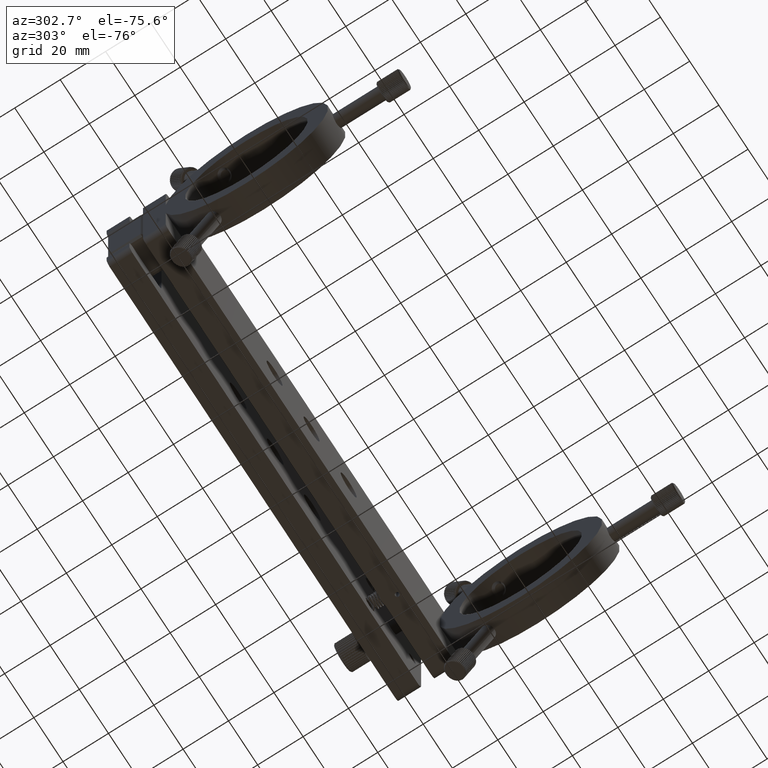
[diagram: clean part render]
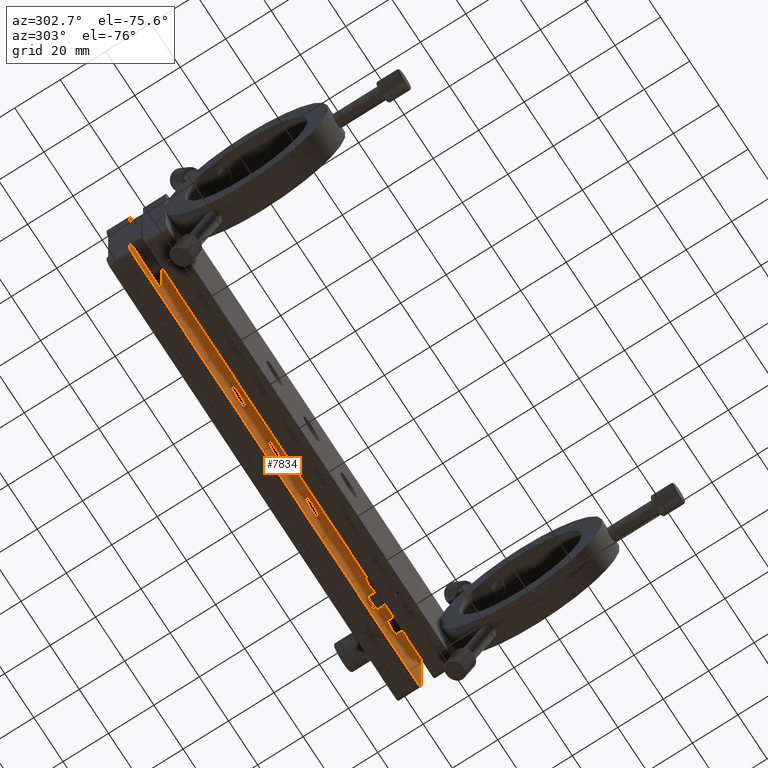
[diagram: same view with one face highlighted and labeled with its STEP entity id]
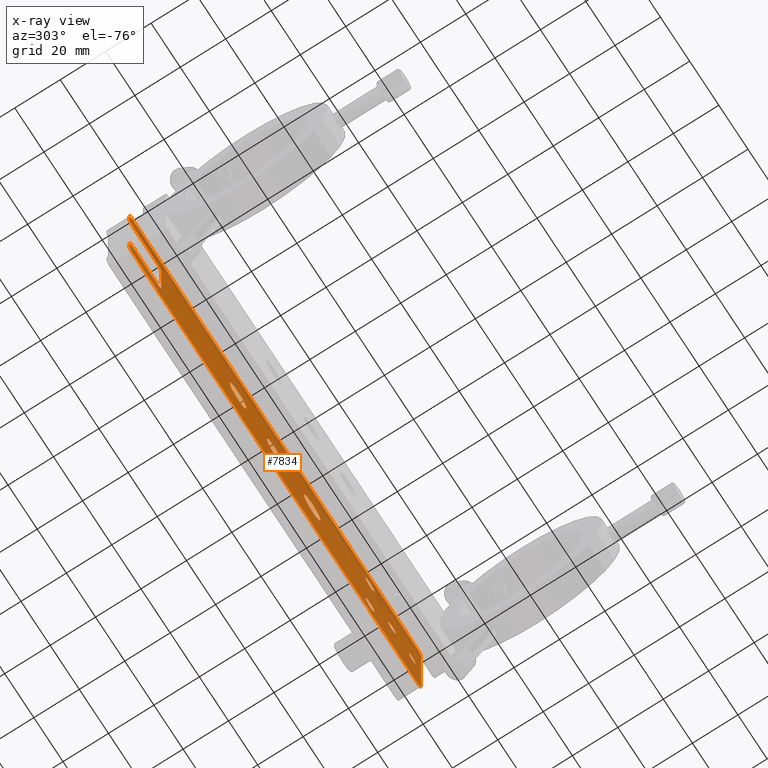
[diagram: x-ray of the same camera — body ghosted, the highlighted face saturated]
A machine part, auxiliary view. The second image highlights one B-rep face of the part: STEP entity #7834.
The next image is the same camera in x-ray: the body ghosted, the highlighted face saturated — about 16% of this face is hidden behind the body in this view.
In plain terms, the highlighted planar face has unit normal (-0, -1, 0).
Its self-contained STEP definition (entity closure, byte-faithful):
#23 = CARTESIAN_POINT ( 'NONE',  ( -100.6330608537692100, -1.412957917045111200, -24.99999999999988600 ) ) ;
#157 = ORIENTED_EDGE ( 'NONE', *, *, #3269, .F. ) ;
#218 = DIRECTION ( 'NONE',  ( -2.209601736609701800E-017, -1.000000000000000000, 9.593664196835668400E-017 ) ) ;
#554 = EDGE_CURVE ( 'NONE', #32211, #28431, #33998, .T. ) ;
#588 = FACE_BOUND ( 'NONE', #8189, .T. ) ;
#626 = ORIENTED_EDGE ( 'NONE', *, *, #26032, .T. ) ;
#871 = VERTEX_POINT ( 'NONE', #19591 ) ;
#1132 = DIRECTION ( 'NONE',  ( 0.0000000000000000000, -7.228014483236698300E-017, -1.000000000000000000 ) ) ;
#1234 = DIRECTION ( 'NONE',  ( 0.0000000000000000000, -7.228014483236694600E-017, -1.000000000000000000 ) ) ;
#1512 = CIRCLE ( 'NONE', #39091, 2.999999999999999100 ) ;
#1578 = VERTEX_POINT ( 'NONE', #15476 ) ;
#1642 = EDGE_CURVE ( 'NONE', #1578, #38785, #1512, .T. ) ;
#1869 = CIRCLE ( 'NONE', #23849, 2.999999999999999100 ) ;
#2139 = ORIENTED_EDGE ( 'NONE', *, *, #45605, .F. ) ;
#2267 = EDGE_LOOP ( 'NONE', ( #22863, #24629 ) ) ;
#2333 = DIRECTION ( 'NONE',  ( 0.0000000000000000000, -1.130482230880711100E-016, -1.000000000000000000 ) ) ;
#2859 = ORIENTED_EDGE ( 'NONE', *, *, #33308, .F. ) ;
#2924 = FACE_BOUND ( 'NONE', #25978, .T. ) ;
#2989 = EDGE_CURVE ( 'NONE', #47160, #871, #15556, .T. ) ;
#3006 = ORIENTED_EDGE ( 'NONE', *, *, #47632, .F. ) ;
#3269 = EDGE_CURVE ( 'NONE', #6565, #33777, #19101, .T. ) ;
#3628 = DIRECTION ( 'NONE',  ( -1.000000000000000000, 2.209601736609698700E-017, 5.579729118605796500E-018 ) ) ;
#3635 = AXIS2_PLACEMENT_3D ( 'NONE', #6798, #17965, #33162 ) ;
#3651 = LINE ( 'NONE', #9124, #32545 ) ;
#3735 = LINE ( 'NONE', #7737, #46188 ) ;
#3799 = ORIENTED_EDGE ( 'NONE', *, *, #27850, .T. ) ;
#4032 = VECTOR ( 'NONE', #15112, 1000.000000000000000 ) ;
#4038 = ORIENTED_EDGE ( 'NONE', *, *, #18357, .T. ) ;
#4097 = FACE_OUTER_BOUND ( 'NONE', #20282, .T. ) ;
#4157 = DIRECTION ( 'NONE',  ( -2.209601736609701800E-017, -1.000000000000000000, 9.593664196835668400E-017 ) ) ;
#4244 = EDGE_CURVE ( 'NONE', #22088, #46570, #4894, .T. ) ;
#4291 = CARTESIAN_POINT ( 'NONE',  ( 96.36693914623062100, -1.412957917045111200, 22.00000000000001800 ) ) ;
#4833 = CARTESIAN_POINT ( 'NONE',  ( 61.36693914623065600, -1.412957917045108500, 15.00000000000002700 ) ) ;
#4835 = CIRCLE ( 'NONE', #17672, 3.000000000000006200 ) ;
#4894 = CIRCLE ( 'NONE', #30663, 3.000000000000000900 ) ;
#5297 = AXIS2_PLACEMENT_3D ( 'NONE', #40481, #25040, #17717 ) ;
#5728 = ORIENTED_EDGE ( 'NONE', *, *, #26307, .F. ) ;
#5930 = CARTESIAN_POINT ( 'NONE',  ( -103.6330608537692100, -1.412957917045107600, -17.99999999999991100 ) ) ;
#5941 = DIRECTION ( 'NONE',  ( 1.000000000000000000, -2.209601736609698100E-017, 5.030698080332758400E-017 ) ) ;
#6439 = DIRECTION ( 'NONE',  ( 2.209601736609701800E-017, 1.000000000000000000, -9.593664196835668400E-017 ) ) ;
#6565 = VERTEX_POINT ( 'NONE', #27927 ) ;
#6738 = AXIS2_PLACEMENT_3D ( 'NONE', #8272, #15826, #27218 ) ;
#6798 = CARTESIAN_POINT ( 'NONE',  ( 61.36693914623065600, -1.412957917045108500, 15.00000000000002700 ) ) ;
#6914 = AXIS2_PLACEMENT_3D ( 'NONE', #24927, #39555, #31977 ) ;
#6957 = DIRECTION ( 'NONE',  ( -2.209601736609701800E-017, -1.000000000000000000, 9.593664196835668400E-017 ) ) ;
#7036 = ORIENTED_EDGE ( 'NONE', *, *, #1642, .T. ) ;
#7069 = VERTEX_POINT ( 'NONE', #12058 ) ;
#7109 = DIRECTION ( 'NONE',  ( 0.0000000000000000000, -8.673617379884079800E-017, -1.000000000000000000 ) ) ;
#7597 = CIRCLE ( 'NONE', #44677, 5.754369999999990900 ) ;
#7678 = ORIENTED_EDGE ( 'NONE', *, *, #28946, .F. ) ;
#7737 = CARTESIAN_POINT ( 'NONE',  ( 93.36693914623062100, -1.412957917045105900, 25.00000000000001100 ) ) ;
#7834 = ADVANCED_FACE ( 'NONE', ( #12913, #34203, #40061, #588, #24151, #4097, #42998, #2924 ), #36970, .T. ) ;
#7864 = ORIENTED_EDGE ( 'NONE', *, *, #35471, .F. ) ;
#8171 = EDGE_CURVE ( 'NONE', #43076, #23034, #7597, .T. ) ;
#8189 = EDGE_LOOP ( 'NONE', ( #42720, #25693 ) ) ;
#8272 = CARTESIAN_POINT ( 'NONE',  ( -84.63306085376922300, -1.412957917045106800, 12.00000000000005000 ) ) ;
#8590 = EDGE_CURVE ( 'NONE', #28431, #32211, #39963, .T. ) ;
#8638 = ORIENTED_EDGE ( 'NONE', *, *, #43807, .T. ) ;
#8761 = AXIS2_PLACEMENT_3D ( 'NONE', #31918, #47070, #31593 ) ;
#8909 = CARTESIAN_POINT ( 'NONE',  ( 90.36693914623062100, -1.412957917045110300, 3.209675328299507200E-014 ) ) ;
#8926 = EDGE_LOOP ( 'NONE', ( #7864, #2859 ) ) ;
#9124 = CARTESIAN_POINT ( 'NONE',  ( -81.63306085376920900, -1.412957917045107600, -11.99999999999992900 ) ) ;
#9450 = DIRECTION ( 'NONE',  ( -2.209601736609701800E-017, -1.000000000000000000, 9.593664196835668400E-017 ) ) ;
#9598 = CARTESIAN_POINT ( 'NONE',  ( -3.633060853769308100, -1.412957917045109200, -5.754369999999943800 ) ) ;
#9610 = EDGE_LOOP ( 'NONE', ( #3006, #42098 ) ) ;
#9673 = CARTESIAN_POINT ( 'NONE',  ( -103.6330608537691900, -1.412957917045104100, 22.00000000000002100 ) ) ;
#10223 = DIRECTION ( 'NONE',  ( 0.0000000000000000000, -7.228014483236694600E-017, -1.000000000000000000 ) ) ;
#10373 = DIRECTION ( 'NONE',  ( 0.0000000000000000000, -9.637352644315591500E-017, -1.000000000000000000 ) ) ;
#10863 = AXIS2_PLACEMENT_3D ( 'NONE', #20406, #34280, #15287 ) ;
#11049 = VERTEX_POINT ( 'NONE', #42458 ) ;
#11659 = CARTESIAN_POINT ( 'NONE',  ( 96.36693914623062100, -1.412957917045112800, -21.99999999999995400 ) ) ;
#12058 = CARTESIAN_POINT ( 'NONE',  ( -3.633060853769305400, -1.412957917045107900, 5.754370000000041500 ) ) ;
#12336 = VECTOR ( 'NONE', #45034, 1000.000000000000000 ) ;
#12685 = DIRECTION ( 'NONE',  ( -2.209601736609701800E-017, -1.000000000000000000, 9.593664196835668400E-017 ) ) ;
#12780 = VERTEX_POINT ( 'NONE', #9598 ) ;
#12913 = FACE_BOUND ( 'NONE', #9610, .T. ) ;
#12929 = CARTESIAN_POINT ( 'NONE',  ( 61.36693914623065600, -1.412957917045113600, -14.99999999999995400 ) ) ;
#13361 = EDGE_CURVE ( 'NONE', #11049, #30489, #13732, .T. ) ;
#13522 = CIRCLE ( 'NONE', #15157, 5.754369999999990900 ) ;
#13732 = CIRCLE ( 'NONE', #6914, 2.999999999999999100 ) ;
#14122 = VECTOR ( 'NONE', #21848, 1000.000000000000000 ) ;
#14166 = CIRCLE ( 'NONE', #43615, 2.250000000000000900 ) ;
#14415 = ORIENTED_EDGE ( 'NONE', *, *, #35791, .T. ) ;
#15112 = DIRECTION ( 'NONE',  ( 1.665334536937734800E-016, 9.593664196835669600E-017, 1.000000000000000000 ) ) ;
#15157 = AXIS2_PLACEMENT_3D ( 'NONE', #30972, #41493, #34143 ) ;
#15287 = DIRECTION ( 'NONE',  ( 0.0000000000000000000, -8.673617379884079800E-017, -1.000000000000000000 ) ) ;
#15429 = CARTESIAN_POINT ( 'NONE',  ( -29.03306085376928900, -1.412957917045108300, -5.754369999999939400 ) ) ;
#15476 = CARTESIAN_POINT ( 'NONE',  ( 93.36693914623062100, -1.412957917045112800, -24.99999999999996400 ) ) ;
#15556 = LINE ( 'NONE', #17416, #40343 ) ;
#15826 = DIRECTION ( 'NONE',  ( 2.209601736609701800E-017, 1.000000000000000000, -9.593664196835668400E-017 ) ) ;
#16065 = VERTEX_POINT ( 'NONE', #18180 ) ;
#16170 = CARTESIAN_POINT ( 'NONE',  ( 61.36693914623065600, -1.412957917045113900, -17.99999999999995700 ) ) ;
#16743 = VERTEX_POINT ( 'NONE', #4291 ) ;
#17029 = ORIENTED_EDGE ( 'NONE', *, *, #38560, .T. ) ;
#17084 = EDGE_LOOP ( 'NONE', ( #7678, #2139 ) ) ;
#17416 = CARTESIAN_POINT ( 'NONE',  ( -103.6330608537692200, -1.412957917045107600, -17.99999999999991100 ) ) ;
#17601 = ORIENTED_EDGE ( 'NONE', *, *, #13361, .F. ) ;
#17672 = AXIS2_PLACEMENT_3D ( 'NONE', #35183, #9450, #28230 ) ;
#17717 = DIRECTION ( 'NONE',  ( 0.0000000000000000000, -7.228014483236681000E-017, -1.000000000000000000 ) ) ;
#17720 = DIRECTION ( 'NONE',  ( 6.772360450213497500E-015, -9.593664196835684400E-017, -1.000000000000000000 ) ) ;
#17788 = CIRCLE ( 'NONE', #23709, 5.754369999999990900 ) ;
#17965 = DIRECTION ( 'NONE',  ( -2.209601736609701800E-017, -1.000000000000000000, 9.593664196835668400E-017 ) ) ;
#18089 = CARTESIAN_POINT ( 'NONE',  ( -3.633060853769307200, -1.412957917045108500, 4.775089793020978000E-014 ) ) ;
#18144 = CARTESIAN_POINT ( 'NONE',  ( 93.36693914623062100, -1.412957917045108500, 22.00000000000001100 ) ) ;
#18180 = CARTESIAN_POINT ( 'NONE',  ( -100.6330608537692100, -1.412957917045110300, -14.99999999999992400 ) ) ;
#18357 = EDGE_CURVE ( 'NONE', #38785, #16743, #21140, .T. ) ;
#18473 = CARTESIAN_POINT ( 'NONE',  ( 93.36693914623062100, -1.412957917045105900, 25.00000000000001100 ) ) ;
#18544 = VERTEX_POINT ( 'NONE', #34108 ) ;
#19101 = CIRCLE ( 'NONE', #19244, 3.000000000000000900 ) ;
#19244 = AXIS2_PLACEMENT_3D ( 'NONE', #4833, #24111, #1234 ) ;
#19591 = CARTESIAN_POINT ( 'NONE',  ( -103.6330608537691900, -1.412957917045105900, -21.99999999999988600 ) ) ;
#20212 = CIRCLE ( 'NONE', #31546, 5.754369999999990900 ) ;
#20282 = EDGE_LOOP ( 'NONE', ( #8638, #39223, #26292, #14415, #27119, #48062, #17029, #43459, #35689, #25915, #39510, #33838, #626, #3799, #7036, #4038 ) ) ;
#20406 = CARTESIAN_POINT ( 'NONE',  ( 76.36693914623062100, -1.412957917045111200, 5.551928382156476500E-014 ) ) ;
#20564 = CIRCLE ( 'NONE', #8761, 2.999999999999988900 ) ;
#21066 = EDGE_LOOP ( 'NONE', ( #17601, #5728 ) ) ;
#21140 = LINE ( 'NONE', #11659, #4032 ) ;
#21493 = VERTEX_POINT ( 'NONE', #45705 ) ;
#21642 = CARTESIAN_POINT ( 'NONE',  ( -29.03306085376928900, -1.412957917045107000, 5.754370000000046800 ) ) ;
#21848 = DIRECTION ( 'NONE',  ( -1.000000000000000000, 2.209601736609702400E-017, 3.833738881908745700E-016 ) ) ;
#21910 = DIRECTION ( 'NONE',  ( -2.209601736609701800E-017, -1.000000000000000000, 9.593664196835668400E-017 ) ) ;
#22088 = VERTEX_POINT ( 'NONE', #31034 ) ;
#22294 = DIRECTION ( 'NONE',  ( -1.665334536937734800E-016, -9.593664196835668400E-017, -1.000000000000000000 ) ) ;
#22402 = CARTESIAN_POINT ( 'NONE',  ( 61.36693914623065600, -1.412957917045108800, 12.00000000000002500 ) ) ;
#22420 = LINE ( 'NONE', #25652, #14122 ) ;
#22863 = ORIENTED_EDGE ( 'NONE', *, *, #47204, .F. ) ;
#22910 = DIRECTION ( 'NONE',  ( 0.0000000000000000000, -7.228014483236698300E-017, -1.000000000000000000 ) ) ;
#23034 = VERTEX_POINT ( 'NONE', #15429 ) ;
#23261 = DIRECTION ( 'NONE',  ( 0.0000000000000000000, -1.130482230880711100E-016, -1.000000000000000000 ) ) ;
#23555 = LINE ( 'NONE', #41218, #12336 ) ;
#23709 = AXIS2_PLACEMENT_3D ( 'NONE', #18089, #21910, #48273 ) ;
#23849 = AXIS2_PLACEMENT_3D ( 'NONE', #12929, #39135, #1132 ) ;
#24111 = DIRECTION ( 'NONE',  ( -2.209601736609701800E-017, -1.000000000000000000, 9.593664196835668400E-017 ) ) ;
#24138 = CARTESIAN_POINT ( 'NONE',  ( 21.76693914623067600, -1.412957917045109600, 5.754370000000038000 ) ) ;
#24151 = FACE_BOUND ( 'NONE', #21066, .T. ) ;
#24440 = EDGE_CURVE ( 'NONE', #41443, #38562, #3735, .T. ) ;
#24590 = DIRECTION ( 'NONE',  ( 0.0000000000000000000, -7.228014483236698300E-017, -1.000000000000000000 ) ) ;
#24629 = ORIENTED_EDGE ( 'NONE', *, *, #31817, .F. ) ;
#24745 = CARTESIAN_POINT ( 'NONE',  ( -84.63306085376922300, -1.412957917045105000, 15.00000000000005200 ) ) ;
#24923 = CARTESIAN_POINT ( 'NONE',  ( -84.63306085376922300, -1.412957917045107600, -11.99999999999992900 ) ) ;
#24927 = CARTESIAN_POINT ( 'NONE',  ( 61.36693914623065600, -1.412957917045113600, -14.99999999999995400 ) ) ;
#25040 = DIRECTION ( 'NONE',  ( -2.209601736609701800E-017, -1.000000000000000000, 9.593664196835668400E-017 ) ) ;
#25241 = DIRECTION ( 'NONE',  ( -2.209601736609701800E-017, -1.000000000000000000, 9.593664196835668400E-017 ) ) ;
#25613 = VERTEX_POINT ( 'NONE', #32003 ) ;
#25652 = CARTESIAN_POINT ( 'NONE',  ( -100.6330608537692100, -1.412957917045110300, -14.99999999999992400 ) ) ;
#25693 = ORIENTED_EDGE ( 'NONE', *, *, #554, .F. ) ;
#25708 = VERTEX_POINT ( 'NONE', #35642 ) ;
#25863 = DIRECTION ( 'NONE',  ( 0.0000000000000000000, -7.228014483236722900E-017, -1.000000000000000000 ) ) ;
#25915 = ORIENTED_EDGE ( 'NONE', *, *, #47829, .T. ) ;
#25978 = EDGE_LOOP ( 'NONE', ( #157, #29160 ) ) ;
#26032 = EDGE_CURVE ( 'NONE', #871, #32265, #31335, .T. ) ;
#26292 = ORIENTED_EDGE ( 'NONE', *, *, #28715, .T. ) ;
#26307 = EDGE_CURVE ( 'NONE', #30489, #11049, #1869, .T. ) ;
#26351 = DIRECTION ( 'NONE',  ( -2.209601736609701800E-017, -1.000000000000000000, 9.593664196835668400E-017 ) ) ;
#26452 = CIRCLE ( 'NONE', #29265, 5.754369999999990900 ) ;
#27008 = EDGE_CURVE ( 'NONE', #33777, #6565, #35413, .T. ) ;
#27119 = ORIENTED_EDGE ( 'NONE', *, *, #46357, .T. ) ;
#27218 = DIRECTION ( 'NONE',  ( 0.0000000000000000000, -7.228014483236694600E-017, -1.000000000000000000 ) ) ;
#27464 = CIRCLE ( 'NONE', #37824, 2.250000000000000900 ) ;
#27521 = CARTESIAN_POINT ( 'NONE',  ( -100.6330608537692100, -1.412957917045105000, 15.00000000000004300 ) ) ;
#27850 = EDGE_CURVE ( 'NONE', #32265, #1578, #23555, .T. ) ;
#27927 = CARTESIAN_POINT ( 'NONE',  ( 61.36693914623065600, -1.412957917045108300, 18.00000000000002800 ) ) ;
#27963 = CARTESIAN_POINT ( 'NONE',  ( -29.03306085376928900, -1.412957917045107600, 5.198084765403162200E-014 ) ) ;
#28180 = CARTESIAN_POINT ( 'NONE',  ( -29.03306085376928900, -1.412957917045107600, 5.198084765403162200E-014 ) ) ;
#28194 = CARTESIAN_POINT ( 'NONE',  ( 93.36693914623062100, -1.412957917045108500, 22.00000000000001100 ) ) ;
#28230 = DIRECTION ( 'NONE',  ( 0.0000000000000000000, -7.228014483236681000E-017, -1.000000000000000000 ) ) ;
#28424 = CIRCLE ( 'NONE', #32139, 2.999999999999999100 ) ;
#28431 = VERTEX_POINT ( 'NONE', #45302 ) ;
#28555 = AXIS2_PLACEMENT_3D ( 'NONE', #18144, #48322, #22294 ) ;
#28715 = EDGE_CURVE ( 'NONE', #38562, #31612, #20564, .T. ) ;
#28946 = EDGE_CURVE ( 'NONE', #12780, #7069, #26452, .T. ) ;
#29160 = ORIENTED_EDGE ( 'NONE', *, *, #27008, .F. ) ;
#29174 = EDGE_CURVE ( 'NONE', #16065, #47160, #35275, .T. ) ;
#29265 = AXIS2_PLACEMENT_3D ( 'NONE', #33234, #37336, #33408 ) ;
#30489 = VERTEX_POINT ( 'NONE', #16170 ) ;
#30648 = CIRCLE ( 'NONE', #32580, 5.754369999999990900 ) ;
#30663 = AXIS2_PLACEMENT_3D ( 'NONE', #24923, #6439, #10223 ) ;
#30972 = CARTESIAN_POINT ( 'NONE',  ( 21.76693914623067600, -1.412957917045110300, 4.352094820638791800E-014 ) ) ;
#31016 = CARTESIAN_POINT ( 'NONE',  ( -100.6330608537692100, -1.412957917045104100, 25.00000000000002100 ) ) ;
#31034 = CARTESIAN_POINT ( 'NONE',  ( -81.63306085376920900, -1.412957917045107600, -11.99999999999992900 ) ) ;
#31335 = CIRCLE ( 'NONE', #45929, 2.999999999999988900 ) ;
#31546 = AXIS2_PLACEMENT_3D ( 'NONE', #34019, #4157, #23261 ) ;
#31593 = DIRECTION ( 'NONE',  ( 0.0000000000000000000, -7.228014483236722900E-017, -1.000000000000000000 ) ) ;
#31612 = VERTEX_POINT ( 'NONE', #41704 ) ;
#31781 = LINE ( 'NONE', #9673, #45933 ) ;
#31811 = AXIS2_PLACEMENT_3D ( 'NONE', #44688, #6957, #7109 ) ;
#31817 = EDGE_CURVE ( 'NONE', #43965, #25613, #27464, .T. ) ;
#31918 = CARTESIAN_POINT ( 'NONE',  ( -100.6330608537692100, -1.412957917045106800, 22.00000000000002500 ) ) ;
#31977 = DIRECTION ( 'NONE',  ( 0.0000000000000000000, -7.228014483236698300E-017, -1.000000000000000000 ) ) ;
#32003 = CARTESIAN_POINT ( 'NONE',  ( 90.36693914623062100, -1.412957917045110100, 2.250000000000033800 ) ) ;
#32133 = CARTESIAN_POINT ( 'NONE',  ( 96.36693914623062100, -1.412957917045112800, -21.99999999999995400 ) ) ;
#32139 = AXIS2_PLACEMENT_3D ( 'NONE', #28194, #43357, #24590 ) ;
#32211 = VERTEX_POINT ( 'NONE', #34420 ) ;
#32265 = VERTEX_POINT ( 'NONE', #23 ) ;
#32545 = VECTOR ( 'NONE', #46841, 1000.000000000000000 ) ;
#32580 = AXIS2_PLACEMENT_3D ( 'NONE', #27963, #34908, #42952 ) ;
#32960 = CARTESIAN_POINT ( 'NONE',  ( 90.36693914623062100, -1.412957917045110300, 3.209675328299507200E-014 ) ) ;
#33162 = DIRECTION ( 'NONE',  ( 0.0000000000000000000, -7.228014483236694600E-017, -1.000000000000000000 ) ) ;
#33234 = CARTESIAN_POINT ( 'NONE',  ( -3.633060853769307200, -1.412957917045108500, 4.775089793020978000E-014 ) ) ;
#33308 = EDGE_CURVE ( 'NONE', #46459, #25708, #20212, .T. ) ;
#33408 = DIRECTION ( 'NONE',  ( -1.507309641174281200E-016, -1.130482230880711100E-016, -1.000000000000000000 ) ) ;
#33777 = VERTEX_POINT ( 'NONE', #22402 ) ;
#33838 = ORIENTED_EDGE ( 'NONE', *, *, #2989, .T. ) ;
#33998 = CIRCLE ( 'NONE', #31811, 2.499999999999987100 ) ;
#34019 = CARTESIAN_POINT ( 'NONE',  ( 21.76693914623067600, -1.412957917045110300, 4.352094820638791800E-014 ) ) ;
#34108 = CARTESIAN_POINT ( 'NONE',  ( -81.63306085376920900, -1.412957917045105900, 12.00000000000005000 ) ) ;
#34143 = DIRECTION ( 'NONE',  ( 0.0000000000000000000, -1.130482230880711100E-016, -1.000000000000000000 ) ) ;
#34203 = FACE_BOUND ( 'NONE', #17084, .T. ) ;
#34280 = DIRECTION ( 'NONE',  ( -2.209601736609701800E-017, -1.000000000000000000, 9.593664196835668400E-017 ) ) ;
#34420 = CARTESIAN_POINT ( 'NONE',  ( 76.36693914623062100, -1.412957917045111000, 2.500000000000044000 ) ) ;
#34826 = VECTOR ( 'NONE', #5941, 1000.000000000000000 ) ;
#34908 = DIRECTION ( 'NONE',  ( -2.209601736609701800E-017, -1.000000000000000000, 9.593664196835668400E-017 ) ) ;
#35183 = CARTESIAN_POINT ( 'NONE',  ( -100.6330608537692100, -1.412957917045105900, 18.00000000000004300 ) ) ;
#35275 = CIRCLE ( 'NONE', #5297, 3.000000000000006200 ) ;
#35413 = CIRCLE ( 'NONE', #3635, 3.000000000000000900 ) ;
#35471 = EDGE_CURVE ( 'NONE', #25708, #46459, #13522, .T. ) ;
#35642 = CARTESIAN_POINT ( 'NONE',  ( 21.76693914623067600, -1.412957917045111000, -5.754369999999948200 ) ) ;
#35689 = ORIENTED_EDGE ( 'NONE', *, *, #4244, .T. ) ;
#35791 = EDGE_CURVE ( 'NONE', #31612, #21493, #31781, .T. ) ;
#36049 = DIRECTION ( 'NONE',  ( -7.105427357601041300E-015, -9.593664196835657300E-017, -1.000000000000000000 ) ) ;
#36913 = VERTEX_POINT ( 'NONE', #27521 ) ;
#36970 = PLANE ( 'NONE',  #28555 ) ;
#37336 = DIRECTION ( 'NONE',  ( -2.209601736609701800E-017, -1.000000000000000000, 9.593664196835668400E-017 ) ) ;
#37824 = AXIS2_PLACEMENT_3D ( 'NONE', #8909, #12685, #43005 ) ;
#38151 = CARTESIAN_POINT ( 'NONE',  ( -84.63306085376922300, -1.412957917045105000, 15.00000000000005200 ) ) ;
#38560 = EDGE_CURVE ( 'NONE', #41191, #18544, #43428, .T. ) ;
#38562 = VERTEX_POINT ( 'NONE', #31016 ) ;
#38785 = VERTEX_POINT ( 'NONE', #32133 ) ;
#39091 = AXIS2_PLACEMENT_3D ( 'NONE', #41183, #218, #22910 ) ;
#39135 = DIRECTION ( 'NONE',  ( -2.209601736609701800E-017, -1.000000000000000000, 9.593664196835668400E-017 ) ) ;
#39223 = ORIENTED_EDGE ( 'NONE', *, *, #24440, .T. ) ;
#39510 = ORIENTED_EDGE ( 'NONE', *, *, #29174, .T. ) ;
#39555 = DIRECTION ( 'NONE',  ( -2.209601736609701800E-017, -1.000000000000000000, 9.593664196835668400E-017 ) ) ;
#39963 = CIRCLE ( 'NONE', #10863, 2.499999999999987100 ) ;
#40043 = CARTESIAN_POINT ( 'NONE',  ( 90.36693914623062100, -1.412957917045110500, -2.249999999999969800 ) ) ;
#40061 = FACE_BOUND ( 'NONE', #8926, .T. ) ;
#40343 = VECTOR ( 'NONE', #17720, 1000.000000000000000 ) ;
#40481 = CARTESIAN_POINT ( 'NONE',  ( -100.6330608537692100, -1.412957917045109400, -17.99999999999991100 ) ) ;
#41183 = CARTESIAN_POINT ( 'NONE',  ( 93.36693914623062100, -1.412957917045110300, -21.99999999999996100 ) ) ;
#41191 = VERTEX_POINT ( 'NONE', #38151 ) ;
#41218 = CARTESIAN_POINT ( 'NONE',  ( -100.6330608537692100, -1.412957917045111200, -24.99999999999989000 ) ) ;
#41443 = VERTEX_POINT ( 'NONE', #18473 ) ;
#41454 = CARTESIAN_POINT ( 'NONE',  ( -100.6330608537692100, -1.412957917045108500, -21.99999999999989300 ) ) ;
#41493 = DIRECTION ( 'NONE',  ( -2.209601736609701800E-017, -1.000000000000000000, 9.593664196835668400E-017 ) ) ;
#41704 = CARTESIAN_POINT ( 'NONE',  ( -103.6330608537691900, -1.412957917045104100, 22.00000000000002100 ) ) ;
#42098 = ORIENTED_EDGE ( 'NONE', *, *, #8171, .F. ) ;
#42458 = CARTESIAN_POINT ( 'NONE',  ( 61.36693914623065600, -1.412957917045113400, -11.99999999999995200 ) ) ;
#42720 = ORIENTED_EDGE ( 'NONE', *, *, #8590, .F. ) ;
#42952 = DIRECTION ( 'NONE',  ( 0.0000000000000000000, -1.130482230880711100E-016, -1.000000000000000000 ) ) ;
#42998 = FACE_BOUND ( 'NONE', #2267, .T. ) ;
#43005 = DIRECTION ( 'NONE',  ( 0.0000000000000000000, -9.637352644315591500E-017, -1.000000000000000000 ) ) ;
#43076 = VERTEX_POINT ( 'NONE', #21642 ) ;
#43357 = DIRECTION ( 'NONE',  ( -2.209601736609701800E-017, -1.000000000000000000, 9.593664196835668400E-017 ) ) ;
#43428 = CIRCLE ( 'NONE', #6738, 3.000000000000000900 ) ;
#43459 = ORIENTED_EDGE ( 'NONE', *, *, #46463, .T. ) ;
#43615 = AXIS2_PLACEMENT_3D ( 'NONE', #32960, #25241, #10373 ) ;
#43807 = EDGE_CURVE ( 'NONE', #16743, #41443, #28424, .T. ) ;
#43965 = VERTEX_POINT ( 'NONE', #40043 ) ;
#44226 = CARTESIAN_POINT ( 'NONE',  ( -84.63306085376922300, -1.412957917045109400, -14.99999999999993100 ) ) ;
#44229 = LINE ( 'NONE', #24745, #34826 ) ;
#44677 = AXIS2_PLACEMENT_3D ( 'NONE', #28180, #46783, #2333 ) ;
#44688 = CARTESIAN_POINT ( 'NONE',  ( 76.36693914623062100, -1.412957917045111200, 5.551928382156476500E-014 ) ) ;
#45034 = DIRECTION ( 'NONE',  ( 1.000000000000000000, -2.209601736609701800E-017, -3.274871782689411700E-016 ) ) ;
#45302 = CARTESIAN_POINT ( 'NONE',  ( 76.36693914623062100, -1.412957917045111400, -2.499999999999931600 ) ) ;
#45605 = EDGE_CURVE ( 'NONE', #7069, #12780, #17788, .T. ) ;
#45705 = CARTESIAN_POINT ( 'NONE',  ( -103.6330608537692200, -1.412957917045104100, 18.00000000000004300 ) ) ;
#45929 = AXIS2_PLACEMENT_3D ( 'NONE', #41454, #26351, #25863 ) ;
#45933 = VECTOR ( 'NONE', #36049, 1000.000000000000000 ) ;
#46188 = VECTOR ( 'NONE', #3628, 1000.000000000000000 ) ;
#46357 = EDGE_CURVE ( 'NONE', #21493, #36913, #4835, .T. ) ;
#46459 = VERTEX_POINT ( 'NONE', #24138 ) ;
#46463 = EDGE_CURVE ( 'NONE', #18544, #22088, #3651, .T. ) ;
#46570 = VERTEX_POINT ( 'NONE', #44226 ) ;
#46783 = DIRECTION ( 'NONE',  ( -2.209601736609701800E-017, -1.000000000000000000, 9.593664196835668400E-017 ) ) ;
#46841 = DIRECTION ( 'NONE',  ( -1.665334536937734800E-016, -9.593664196835669600E-017, -1.000000000000000000 ) ) ;
#47070 = DIRECTION ( 'NONE',  ( -2.209601736609701800E-017, -1.000000000000000000, 9.593664196835668400E-017 ) ) ;
#47160 = VERTEX_POINT ( 'NONE', #5930 ) ;
#47204 = EDGE_CURVE ( 'NONE', #25613, #43965, #14166, .T. ) ;
#47632 = EDGE_CURVE ( 'NONE', #23034, #43076, #30648, .T. ) ;
#47829 = EDGE_CURVE ( 'NONE', #46570, #16065, #22420, .T. ) ;
#48062 = ORIENTED_EDGE ( 'NONE', *, *, #48094, .T. ) ;
#48094 = EDGE_CURVE ( 'NONE', #36913, #41191, #44229, .T. ) ;
#48273 = DIRECTION ( 'NONE',  ( -1.507309641174281200E-016, -1.130482230880711100E-016, -1.000000000000000000 ) ) ;
#48322 = DIRECTION ( 'NONE',  ( -2.209601736609701800E-017, -1.000000000000000000, 9.593664196835668400E-017 ) ) ;